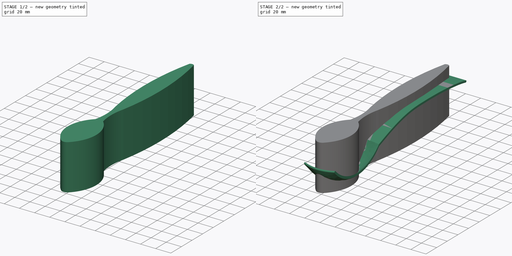
[diagram: build sequence overview — one tinted view per stage of 2, left to right]
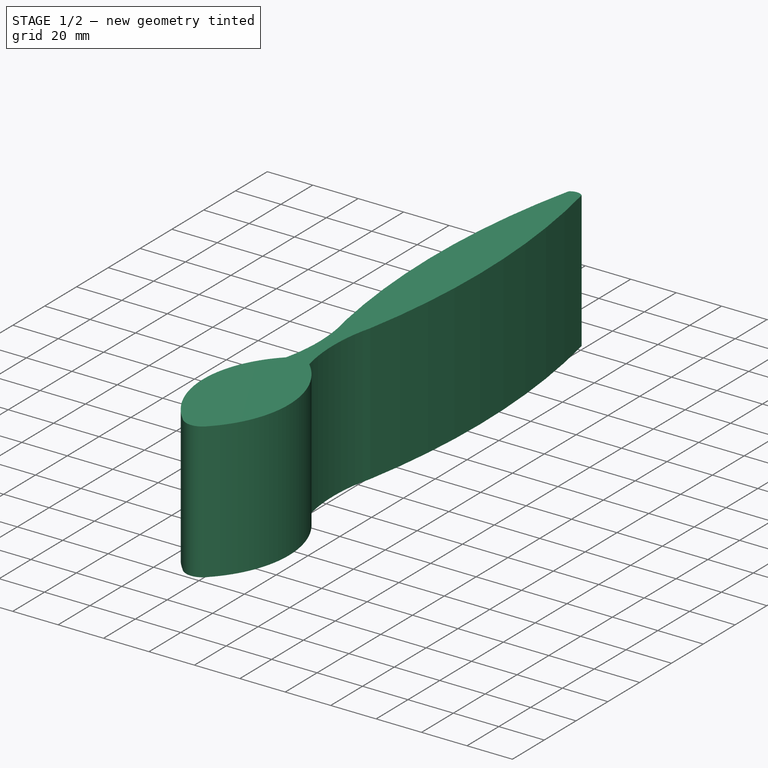
[diagram: stage 1 of 2 — iso view after this stage's code; geometry added in this stage tinted green]
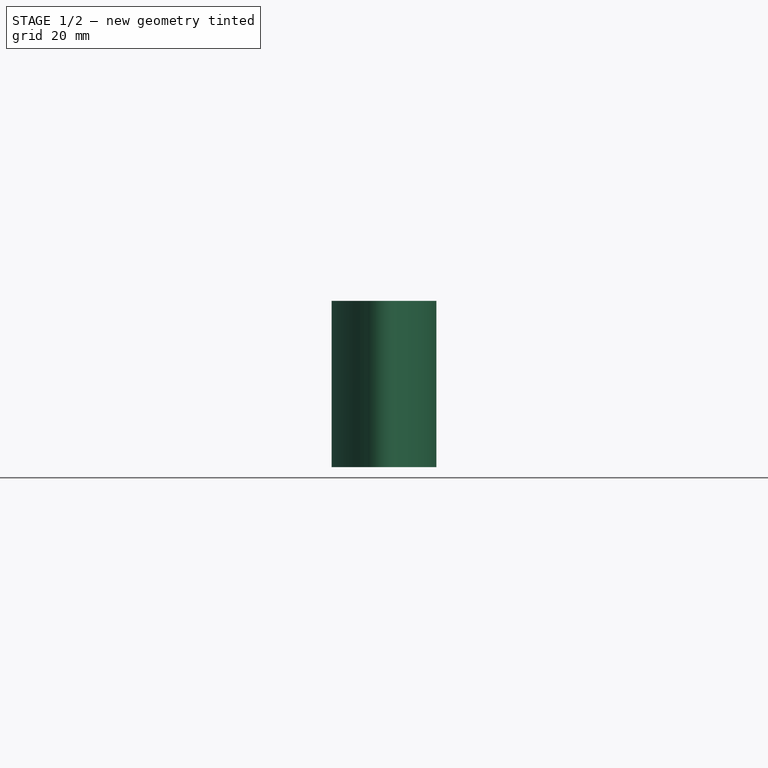
[diagram: stage 1 of 2 — front view after this stage's code; geometry added in this stage tinted green]
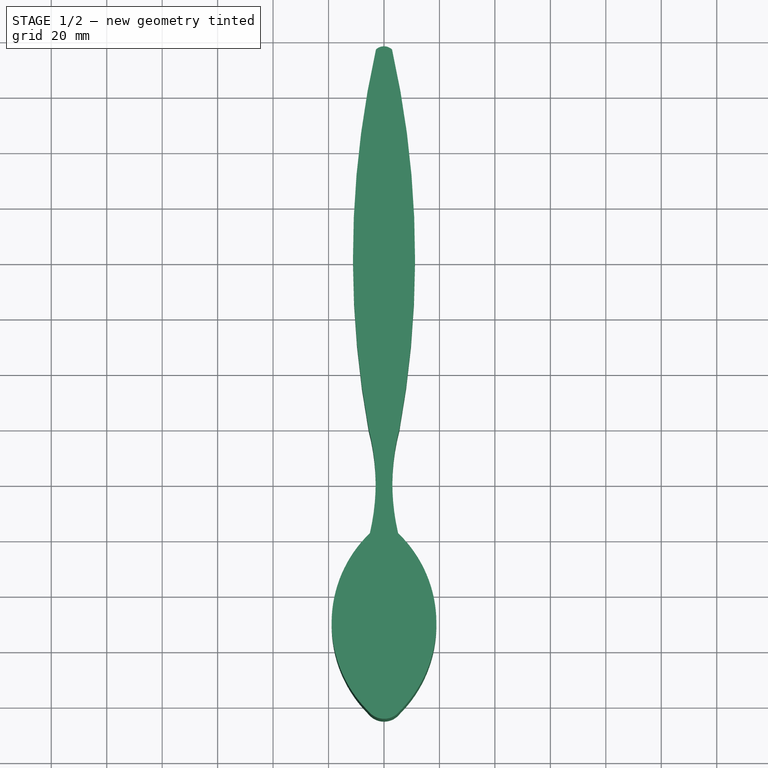
[diagram: stage 1 of 2 — top view after this stage's code; geometry added in this stage tinted green]
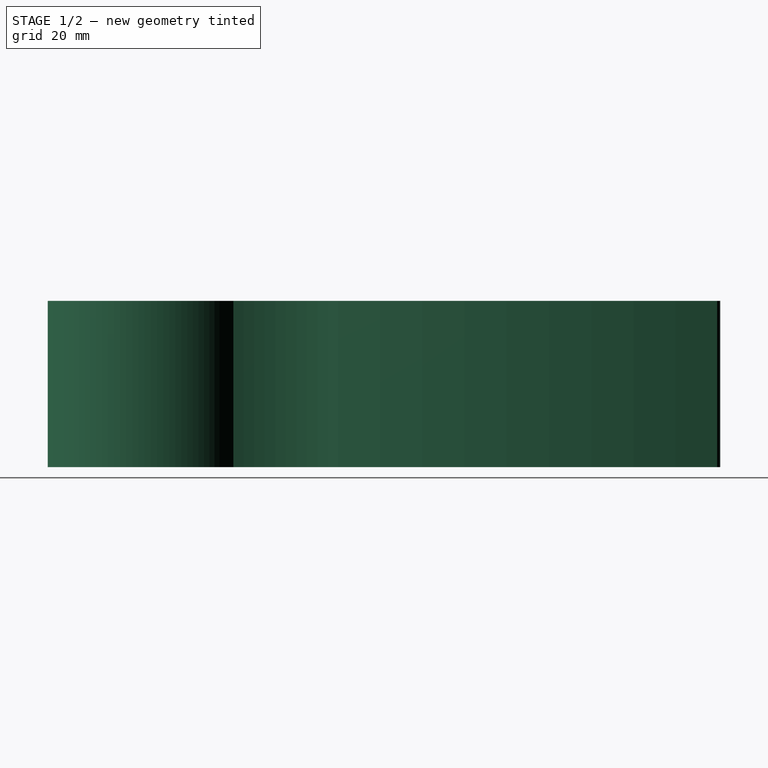
[diagram: stage 1 of 2 — right view after this stage's code; geometry added in this stage tinted green]
FCSTD DOCUMENT  (FreeCAD 0.20R29177 +426 (Git))
Label: proj_18
License: All rights reserved
LicenseURL: http://en.wikipedia.org/wiki/All_rights_reserved
objects: Sketcher::SketchObject×4, Part::Loft×1, Part::Extrusion×1
note: 6 computed .brp shape members not serialized (recipe doc carries the construction recipe); baked Part::Feature solids carry a one-line shape summary decoded from their .brp

FEATURE [Sketcher::SketchObject] Sketch003
  FullyConstrained = false
  Placement = pos=(0,0,32) rot=(0,0,1;0rad)
  sketch-geometry (8):
    g0: ArcOfCircle CenterX=330.378 CenterY=81.6426 CenterZ=0 NormalX=0 NormalY=0 NormalZ=1 AngleXU=0 Radius=341.574 StartAngle=2.9207 EndAngle=3.32368
    g1: ArcOfCircle CenterX=-81.2784 CenterY=0 CenterZ=0 NormalX=0 NormalY=0 NormalZ=1 AngleXU=0 Radius=78.2728 StartAngle=6.05144 EndAngle=6.5388
    g2: ArcOfCircle CenterX=26.0159 CenterY=-50.3629 CenterZ=0 NormalX=0 NormalY=0 NormalZ=1 AngleXU=0 Radius=44.91 StartAngle=2.33617 EndAngle=3.93086
    g3: ArcOfCircle CenterX=-330.378 CenterY=81.6426 CenterZ=0 NormalX=0 NormalY=0 NormalZ=1 AngleXU=0 Radius=341.574 StartAngle=6.1011 EndAngle=6.50408
    g4: ArcOfCircle CenterX=81.2784 CenterY=0 CenterZ=0 NormalX=0 NormalY=0 NormalZ=1 AngleXU=0 Radius=78.2728 StartAngle=2.88598 EndAngle=3.37334
    g5: ArcOfCircle CenterX=-26.0159 CenterY=-50.3629 CenterZ=0 NormalX=0 NormalY=0 NormalZ=1 AngleXU=0 Radius=44.91 StartAngle=5.49392 EndAngle=7.08861
    g6: ArcOfCircle CenterX=-1.6e-15 CenterY=-77.7574 CenterZ=0 NormalX=0 NormalY=0 NormalZ=1 AngleXU=0 Radius=7.18758 StartAngle=3.81528 EndAngle=5.60949
    g7: ArcOfCircle CenterX=3.5193e-12 CenterY=153.387 CenterZ=0 NormalX=0 NormalY=0 NormalZ=1 AngleXU=0 Radius=4.23847 StartAngle=0.818502 EndAngle=2.32309
  constraints (14):
    c: Coincident(g1,g0)
    c: PointOnObject(g1,g-1)
    c: Coincident(g2,g1)
    c: Coincident(g4,g3)
    c: Coincident(g5,g4)
    c: PointOnObject(g4,g-1)
    c: Symmetric(g5,g2,g-2)
    c: Symmetric(g4,g1,g-2)
    c: Symmetric(g3,g0,g-2)
    c: Symmetric(g3,g0,g-2)
    c: Coincident(g6,g2)
    c: Coincident(g6,g5)
    c: Coincident(g7,g0)
    c: Coincident(g7,g3)
FEATURE [Part::Extrusion] Extrude
  Base = -> Sketch003
  Dir = (0,0,1)
  DirMode = 2
  FaceMakerClass = Part::FaceMakerBullseye
  LengthFwd = 60
  LengthRev = 0
  Reversed = true
  Solid = true
  Symmetric = false
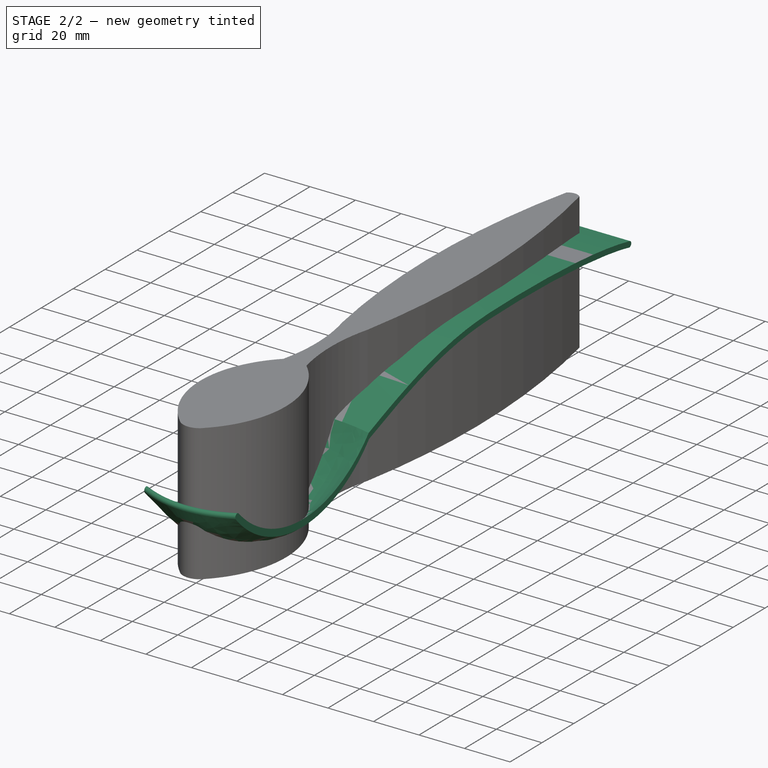
[diagram: stage 2 of 2 — iso view after this stage's code; geometry added in this stage tinted green]
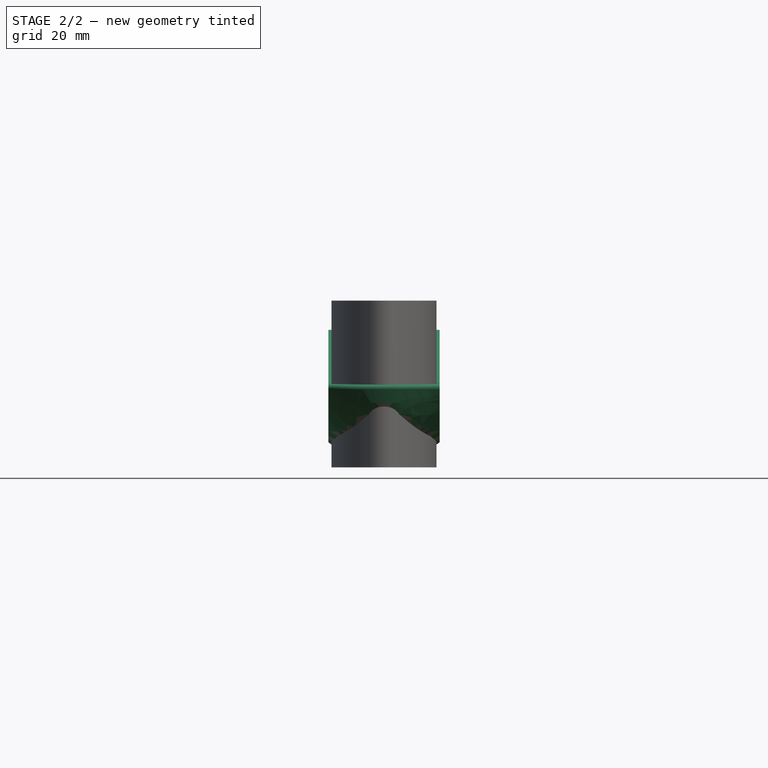
[diagram: stage 2 of 2 — front view after this stage's code; geometry added in this stage tinted green]
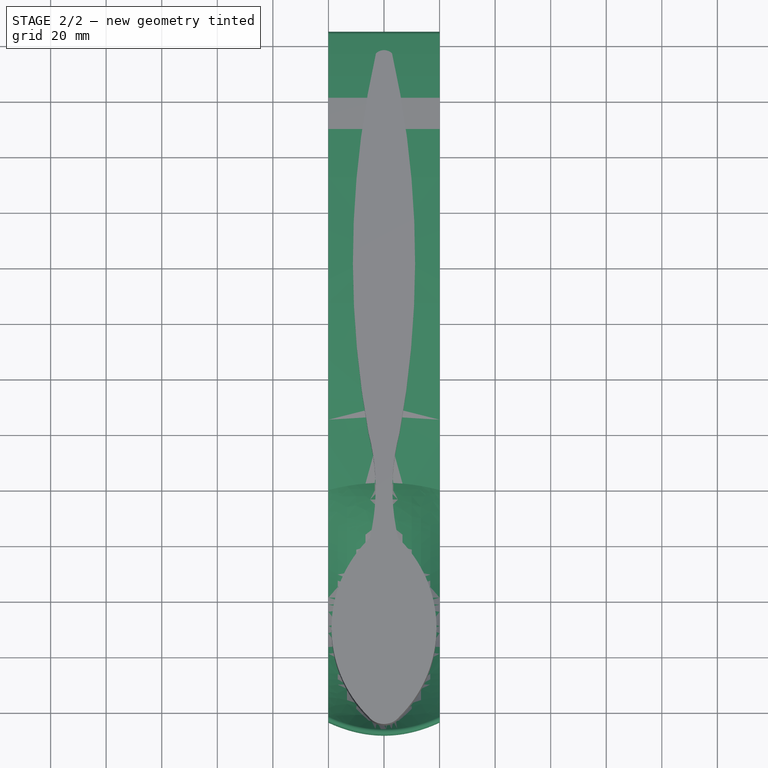
[diagram: stage 2 of 2 — top view after this stage's code; geometry added in this stage tinted green]
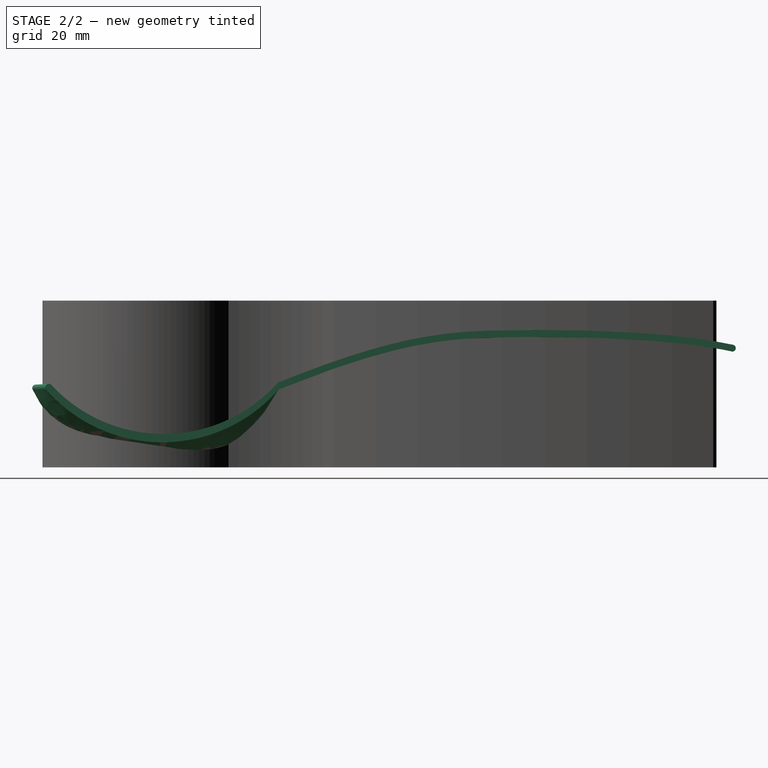
[diagram: stage 2 of 2 — right view after this stage's code; geometry added in this stage tinted green]
FEATURE [Sketcher::SketchObject] Sketch  label="RightSketch"
  FullyConstrained = false
  Placement = pos=(20,0,0) rot=(0.57735,0.57735,0.57735;2.0944rad)
  sketch-geometry (22):
    g0: ArcOfCircle CenterX=-41.8129 CenterY=36.5486 CenterZ=0 NormalX=0 NormalY=0 NormalZ=1 AngleXU=0 Radius=55.5349 StartAngle=3.85991 EndAngle=5.56487
    g1-g5: Circle x5 (B-spline internal-alignment scaffolding for g6; pole/knot coordinates omitted)
    g6: BSplineCurve PolesCount=5 KnotsCount=3 Degree=3 IsPeriodic=0
    g7: GeomPoint X=0 Y=-2.13e-14 Z=0
    g8: GeomPoint X=85.7652 Y=18.9464 Z=0
    g9: GeomPoint X=163.463 Y=13.6448 Z=0
    g10: ArcOfCircle CenterX=-41.3647 CenterY=39.0486 CenterZ=0 NormalX=0 NormalY=0 NormalZ=1 AngleXU=0 Radius=55.0398 StartAngle=3.88811 EndAngle=5.55698
    g11-g15: Circle x5 (B-spline internal-alignment scaffolding for g16; pole/knot coordinates omitted)
    g16: BSplineCurve PolesCount=5 KnotsCount=3 Degree=3 IsPeriodic=0
    g17: GeomPoint X=-0.21161 Y=2.5 Z=0
    g18: GeomPoint X=85.5535 Y=21.4464 Z=0
    g19: GeomPoint X=163.463 Y=16.1448 Z=0
    g20: ArcOfCircle CenterX=-82.6846 CenterY=0.822732 CenterZ=0 NormalX=0 NormalY=0 NormalZ=1 AngleXU=0 Radius=1.25012 StartAngle=0.746522 EndAngle=3.85991
    g21: ArcOfCircle CenterX=163.304 CenterY=14.8948 CenterZ=0 NormalX=0 NormalY=0 NormalZ=1 AngleXU=0 Radius=1.26007 StartAngle=4.83893 EndAngle=7.72744
  constraints (28):
    c: PointOnObject(g0,g-1)
    c: Coincident(g0,g-1)
    c: Weight(g1) = 1
    c: Coincident(g6,g0)
    c: Equal(g1, g2-g5) x4
    c: InternalAlignment(g1-g5 -> g6) x5
    c: InternalAlignment(g7,g6)
    c: InternalAlignment(g8,g6)
    c: InternalAlignment(g9,g6)
    c: Equal(g1,g11) = 1
    c: Coincident(g16,g10)
    c: Equal(g11, g12-g15) x4
    c: InternalAlignment(g11-g15 -> g16) x5
    c: InternalAlignment(g17,g16)
    c: InternalAlignment(g18,g16)
    c: InternalAlignment(g19,g16)
    c: Tangent(g20,g10) = 1.5708
    c: Tangent(g20,g0) = -1.5708
    c: Distance(g10,g0) = 2.5
    c: DistanceY(g0,g10) = 2.5
    c: Coincident(g21,g16)
    c: Coincident(g21,g6)
    c: DistanceY(g6,g16) = 2.5
    c: Vertical(g16,g6)
    c: DistanceY(g4,g14) = 2.5
    c: DistanceY(g3,g13) = 2.5
    c: DistanceY(g2,g12) = 2.5
    c: DistanceY(g0,g10) = 2.5
FEATURE [Sketcher::SketchObject] Sketch001  label="MidSketch"
  FullyConstrained = false
  Placement = pos=(0,0,0) rot=(0.57735,0.57735,0.57735;2.0944rad)
  sketch-geometry (22):
    g0: ArcOfCircle CenterX=-44.2506 CenterY=21.2521 CenterZ=0 NormalX=0 NormalY=0 NormalZ=1 AngleXU=0 Radius=49.0894 StartAngle=3.58933 EndAngle=5.83545
    g1-g5: Circle x5 (B-spline internal-alignment scaffolding for g6; pole/knot coordinates omitted)
    g6: BSplineCurve PolesCount=5 KnotsCount=3 Degree=3 IsPeriodic=0
    g7: GeomPoint X=-7.1e-15 Y=-1.07e-14 Z=0
    g8: GeomPoint X=85.7652 Y=18.9464 Z=0
    g9: GeomPoint X=163.463 Y=13.6448 Z=0
    g10: ArcOfCircle CenterX=-42.2654 CenterY=23.7521 CenterZ=0 NormalX=0 NormalY=0 NormalZ=1 AngleXU=0 Radius=49.4801 StartAngle=3.61682 EndAngle=5.83924
    g11-g15: Circle x5 (B-spline internal-alignment scaffolding for g16; pole/knot coordinates omitted)
    g16: BSplineCurve PolesCount=5 KnotsCount=3 Degree=3 IsPeriodic=0
    g17: GeomPoint X=2.41817 Y=2.5 Z=0
    g18: GeomPoint X=85.5535 Y=21.4464 Z=0
    g19: GeomPoint X=163.463 Y=16.1448 Z=0
    g20: ArcOfCircle CenterX=-87.3743 CenterY=0.54121 CenterZ=0 NormalX=0 NormalY=0 NormalZ=1 AngleXU=0 Radius=1.25012 StartAngle=0.475222 EndAngle=3.58933
    g21: ArcOfCircle CenterX=163.304 CenterY=14.8948 CenterZ=0 NormalX=0 NormalY=0 NormalZ=1 AngleXU=0 Radius=1.26007 StartAngle=4.83893 EndAngle=7.72744
  constraints (28):
    c: PointOnObject(g0,g-1)
    c: Coincident(g0,g-1)
    c: Weight(g1) = 1
    c: Coincident(g6,g0)
    c: Equal(g1, g2-g5) x4
    c: InternalAlignment(g1-g5 -> g6) x5
    c: InternalAlignment(g7,g6)
    c: InternalAlignment(g8,g6)
    c: InternalAlignment(g9,g6)
    c: Equal(g1,g11) = 1
    c: Coincident(g16,g10)
    c: Equal(g11, g12-g15) x4
    c: InternalAlignment(g11-g15 -> g16) x5
    c: InternalAlignment(g17,g16)
    c: InternalAlignment(g18,g16)
    c: InternalAlignment(g19,g16)
    c: Tangent(g20,g10) = 1.5708
    c: Tangent(g20,g0) = -1.5708
    c: Distance(g10,g0) = 2.5
    c: DistanceY(g0,g10) = 2.5
    c: Coincident(g21,g16)
    c: Coincident(g21,g6)
    c: DistanceY(g6,g16) = 2.5
    c: Vertical(g16,g6)
    c: DistanceY(g4,g14) = 2.5
    c: DistanceY(g3,g13) = 2.5
    c: DistanceY(g2,g12) = 2.5
    c: DistanceY(g0,g10) = 2.5
FEATURE [Sketcher::SketchObject] Sketch002  label="LeftSketch"
  FullyConstrained = false
  Placement = pos=(-20,0,0) rot=(0.57735,0.57735,0.57735;2.0944rad)
  sketch-geometry (22):
    g0: ArcOfCircle CenterX=-41.8129 CenterY=36.5486 CenterZ=0 NormalX=0 NormalY=0 NormalZ=1 AngleXU=0 Radius=55.5349 StartAngle=3.85991 EndAngle=5.56487
    g1-g5: Circle x5 (B-spline internal-alignment scaffolding for g6; pole/knot coordinates omitted)
    g6: BSplineCurve PolesCount=5 KnotsCount=3 Degree=3 IsPeriodic=0
    g7: GeomPoint X=0 Y=0 Z=0
    g8: GeomPoint X=85.7652 Y=18.9464 Z=0
    g9: GeomPoint X=163.463 Y=13.6448 Z=0
    g10: ArcOfCircle CenterX=-41.3647 CenterY=39.0486 CenterZ=0 NormalX=0 NormalY=0 NormalZ=1 AngleXU=0 Radius=55.0398 StartAngle=3.88811 EndAngle=5.55698
    g11-g15: Circle x5 (B-spline internal-alignment scaffolding for g16; pole/knot coordinates omitted)
    g16: BSplineCurve PolesCount=5 KnotsCount=3 Degree=3 IsPeriodic=0
    g17: GeomPoint X=-0.21161 Y=2.5 Z=0
    g18: GeomPoint X=85.5535 Y=21.4464 Z=0
    g19: GeomPoint X=163.463 Y=16.1448 Z=0
    g20: ArcOfCircle CenterX=-82.6846 CenterY=0.822732 CenterZ=0 NormalX=0 NormalY=0 NormalZ=1 AngleXU=0 Radius=1.25012 StartAngle=0.746522 EndAngle=3.85991
    g21: ArcOfCircle CenterX=163.304 CenterY=14.8948 CenterZ=0 NormalX=0 NormalY=0 NormalZ=1 AngleXU=0 Radius=1.26007 StartAngle=4.83893 EndAngle=7.72744
  constraints (28):
    c: PointOnObject(g0,g-1)
    c: Coincident(g0,g-1)
    c: Weight(g1) = 1
    c: Coincident(g6,g0)
    c: Equal(g1, g2-g5) x4
    c: InternalAlignment(g1-g5 -> g6) x5
    c: InternalAlignment(g7,g6)
    c: InternalAlignment(g8,g6)
    c: InternalAlignment(g9,g6)
    c: Equal(g1,g11) = 1
    c: Coincident(g16,g10)
    c: Equal(g11, g12-g15) x4
    c: InternalAlignment(g11-g15 -> g16) x5
    c: InternalAlignment(g17,g16)
    c: InternalAlignment(g18,g16)
    c: InternalAlignment(g19,g16)
    c: Tangent(g20,g10) = 1.5708
    c: Tangent(g20,g0) = -1.5708
    c: Distance(g10,g0) = 2.5
    c: DistanceY(g0,g10) = 2.5
    c: Coincident(g21,g16)
    c: Coincident(g21,g6)
    c: DistanceY(g6,g16) = 2.5
    c: Vertical(g16,g6)
    c: DistanceY(g4,g14) = 2.5
    c: DistanceY(g3,g13) = 2.5
    c: DistanceY(g2,g12) = 2.5
    c: DistanceY(g0,g10) = 2.5
FEATURE [Part::Loft] Loft
  Closed = false
  MaxDegree = 5
  Ruled = false
  Sections = -> [Sketch,Sketch001,Sketch002]
  Solid = true
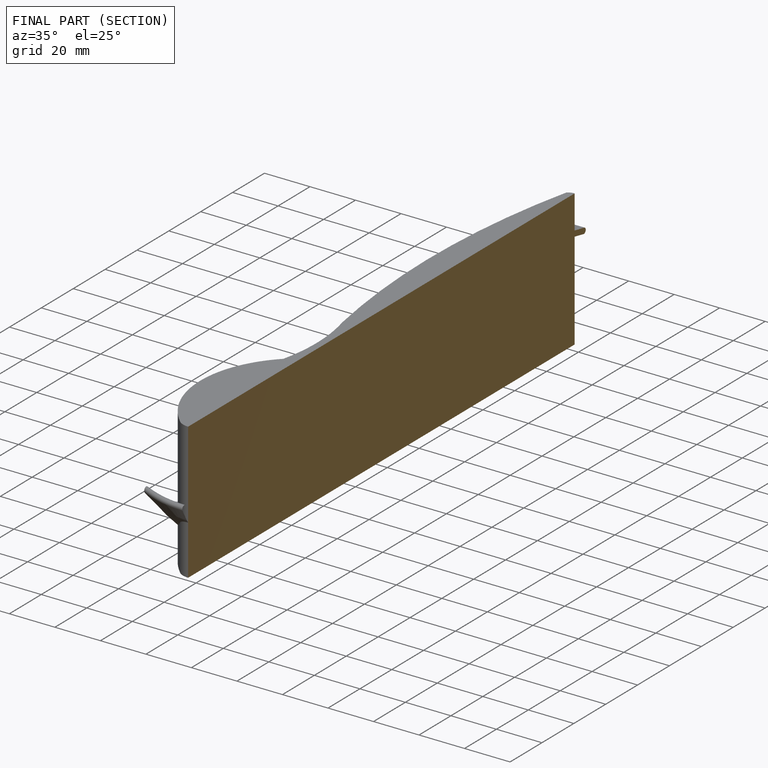
[diagram: finished part — half-section view (interior)]
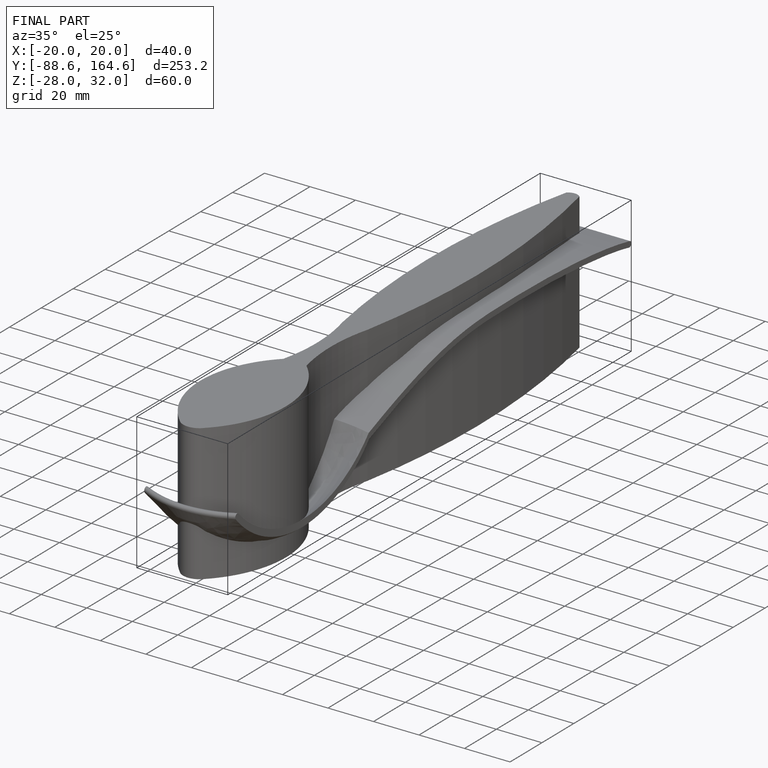
[diagram: finished part — iso view with bounding-box wireframe]
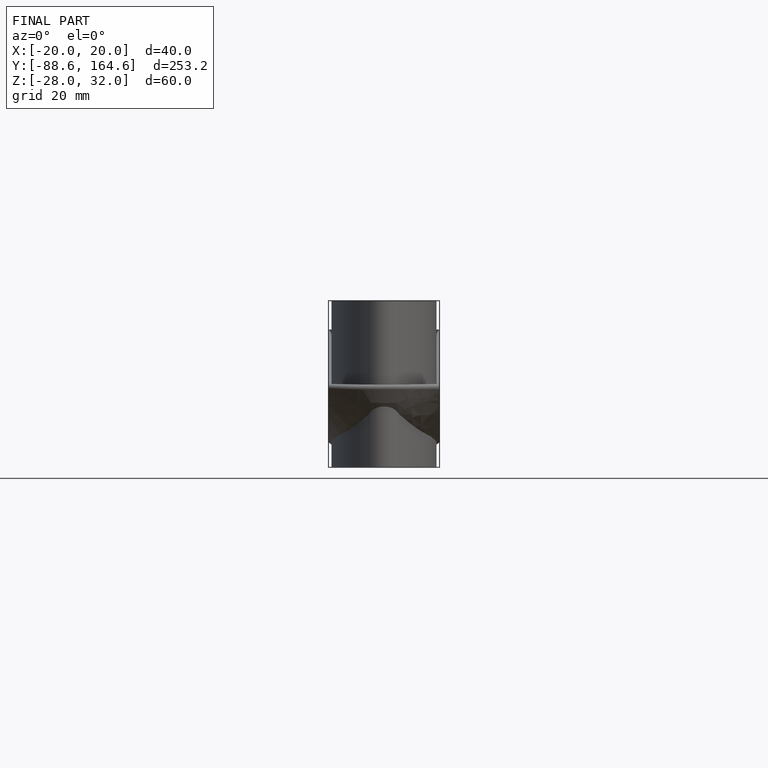
[diagram: finished part — front view with bounding-box wireframe]
